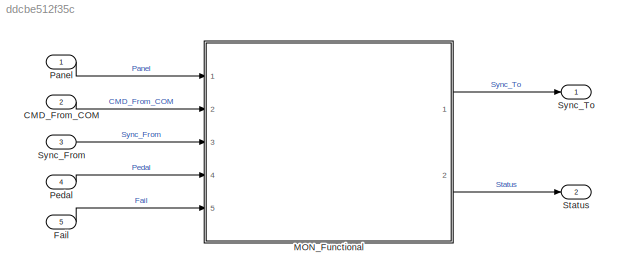
MODEL slx_ddcbe512f35c
KIND model
CONFIG AbsTol = auto
CONFIG FixedStep = auto
CONFIG MaxStep = auto
CONFIG MinStep = auto
CONFIG RelTol = 1e-3
CONFIG SampleTimeConstraint = Unconstrained
CONFIG Solver = FixedStepDiscrete
CONFIG SolverMode = Auto
CONFIG SolverName = FixedStepDiscrete
CONFIG StartTime = 0.0
CONFIG StopTime = 10.0
BLOCK [Inport] CMD_From_COM
  IconDisplay = Port number
  Interpolate = off
  OutDataTypeStr = int32
  Port = 2
  SampleTime = dt
BLOCK [Inport] Fail
  IconDisplay = Port number
  Interpolate = off
  OutDataTypeStr = boolean
  Port = 5
  SampleTime = dt
BLOCK [ModelReference] MON_Functional
  ModelNameDialog = MON_Functional.slx
  ModelReferenceVersion = 1.2
  Ports = [5, 2]
  Variant = off
BLOCK [Inport] Panel
  BusOutputAsStruct = on
  IconDisplay = Port number
  Interpolate = off
  OutDataTypeStr = Bus: PanelMsgImpl
  SampleTime = dt
BLOCK [Inport] Pedal
  IconDisplay = Port number
  Interpolate = off
  OutDataTypeStr = int32
  Port = 4
  SampleTime = dt
BLOCK [Outport] Status
  BusOutputAsStruct = on
  IconDisplay = Port number
  OutDataTypeStr = Bus: ChannelStatusImpl
  Port = 2
BLOCK [Inport] Sync_From
  BusOutputAsStruct = on
  IconDisplay = Port number
  Interpolate = off
  OutDataTypeStr = Bus: SyncMsgImpl
  Port = 3
  SampleTime = dt
BLOCK [Outport] Sync_To
  BusOutputAsStruct = on
  IconDisplay = Port number
  OutDataTypeStr = Bus: SyncMsgImpl
LINE CMD_From_COM:1 -> MON_Functional:2
LINE Fail:1 -> MON_Functional:5
LINE MON_Functional:1 -> Sync_To:1
LINE MON_Functional:2 -> Status:1
LINE Panel:1 -> MON_Functional:1
LINE Pedal:1 -> MON_Functional:4
LINE Sync_From:1 -> MON_Functional:3
